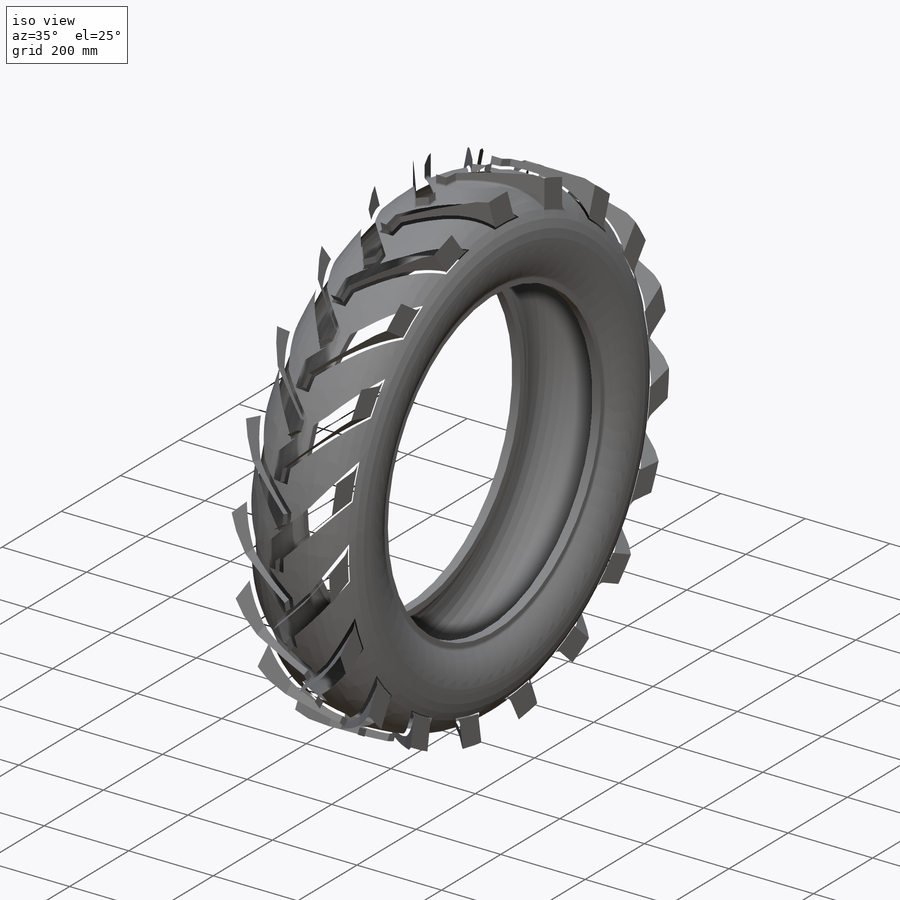
[diagram: iso view]
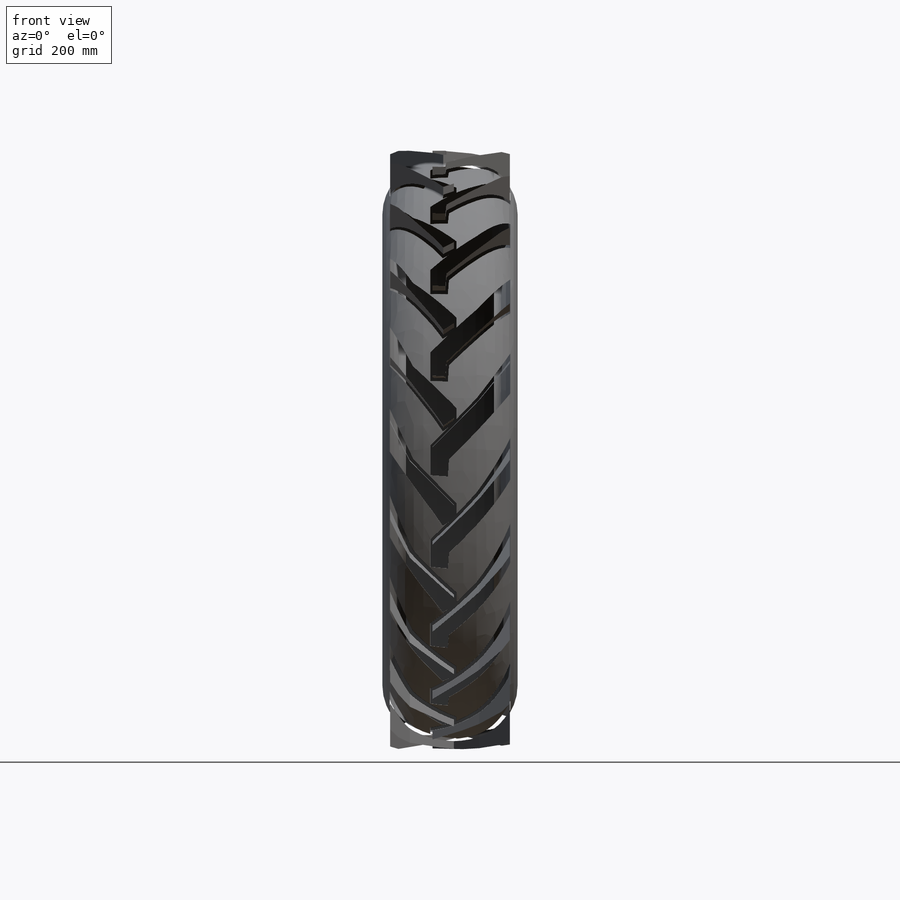
[diagram: front view]
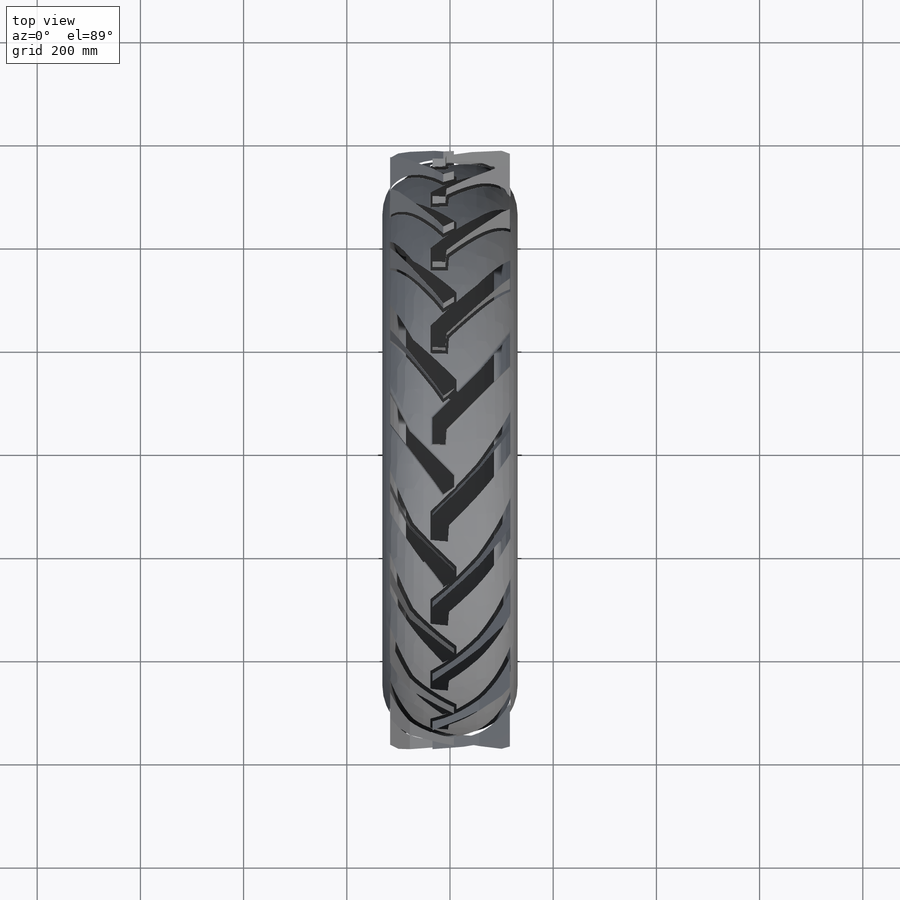
[diagram: top view]
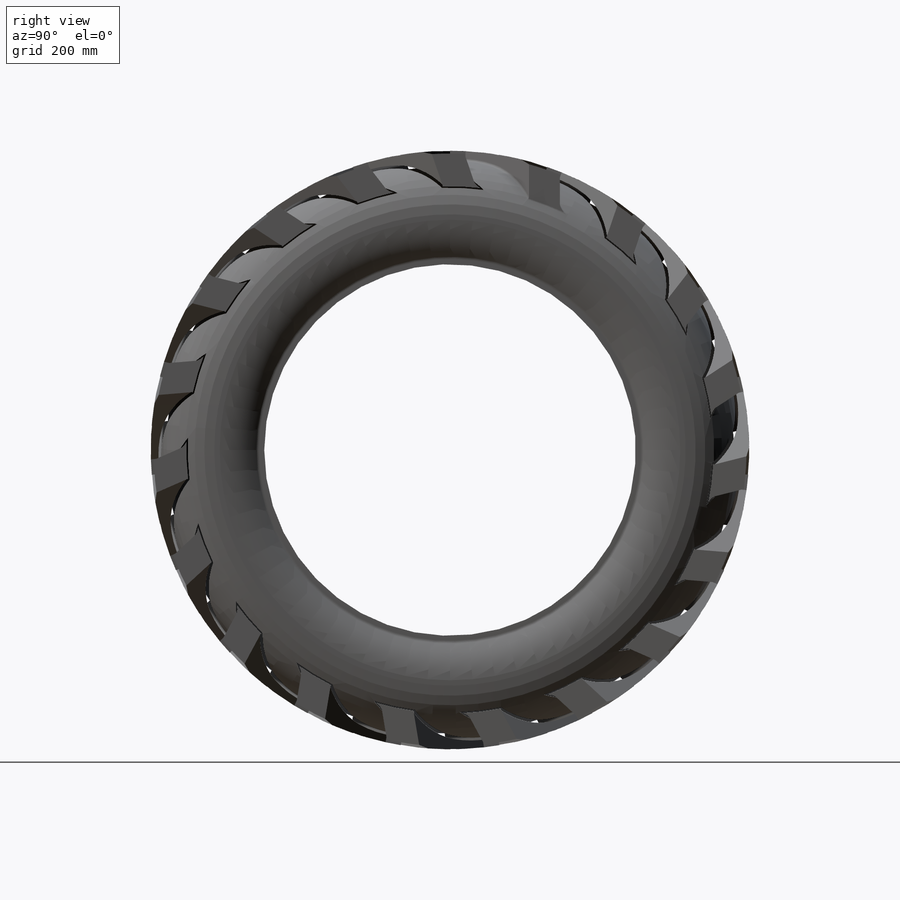
[diagram: right view]
SOLIDWORKS PART (.sldprt)
format: sldprt  version: not decoded by parser v0  size: 2,500,096 bytes
history: native  units: mm
features: plane x4, sketch x4, material x1, revolve x1, mirror x1, extrude x1, fillet x1, pattern_circular x1, cut_revolve x1 (+10 scaffold rows collapsed)
feature tree (25):
  scaffold x10  (default folders/planes/origin — collapsed)
  material  "Caucho"
  plane  "Frontal"
  plane  "Superior"
  plane  "Derecha"
  sketch  "Croquis1"  dims[c1.D1=380.0mm c1.D2=500.0mm c1.D4=100.0mm c1.D5=250.0mm c1.D6=30.0mm c1.D7=115.0mm c1.D9=250.0mm c1.D10=20.0mm c1.D3=250.0mm c2.D4=100.0mm c2.D5=115.0mm c2.D6=10.0mm c3.D5=250.0mm c3.D10=100.0mm c3.D11=~115.001023mm c3.D3=255.0mm c3.D1=255.0mm c3.D2=315.0mm c4.D3=225.0mm c4.D6=~214.731136mm c4.D8=500.0mm c5.D3=946.0mm c5.D2=1389.0mm c5.D7=10.0mm c5.D8=942.25mm c5.D9=360.0mm c6.D2=200.0mm c6.D8=360.0mm c6.D9=105.0mm c6.D3=15.0mm c6.D4=20.0mm c7.D9=10.0mm c7.D1=10.0mm]
  revolve  "Revolución2"  Angle=360deg
  plane  "Plano1"  Offset=610mm
  mirror  "Simetría1"
  sketch  "Croquis2"  dims[c1.D1=~145.329093mm c2.D1=~2.531061deg c3.D1=120.0mm c3.D2=~133.108974mm c4.D2=45.0deg c4.D3=30.0mm c4.D4=50.0mm c4.D5=10.0mm c4.D6=20.0mm c4.D7=15.0mm c4.D8=150.0mm c4.D9=10.0mm c5.D5=10.0mm c5.D9=10.0mm c5.D1=30.0mm c5.D2=10.0mm c5.D3=~139.064334mm c6.D3=~176.09346deg c6.D4=150.0mm c6.D5=120.0mm c6.D6=~24.409993mm c7.D6=90.0deg c8.D6=~139.064334mm c8.D1=~134.26275mm c9.D1=45.0deg c9.D2=35.0mm c9.D3=60.0mm c9.D4=25.0mm c9.D5=150.0mm c9.D6=30.0mm c9.D7=15.0mm c9.D8=15.0mm]
  extrude  "Extruir1"  Depth=10mm
  sketch  "Croquis6"
  fillet  "Redondeo1"  Radius=5mm
  pattern_circular  "MatrizC1"  Count=19 Angle=360deg
  sketch  "Croquis5"  dims[c1.D1=600.0mm c1.D2=15.0mm c1.D3=400.0mm c1.D4=~134.897896mm c2.D1=200.0mm c2.D4=70.0mm c2.D5=500.0mm c2.D6=55.0mm c2.D7=80.0mm]
  cut_revolve  "Cortar-Revolución3"  Angle=360deg
decode coverage: 8 of 10 modeling features carry decoded parameters
note: ~ marks probable driven/reference dimensions
note: suppression state not decoded; provenance and decode notes live in map.json
